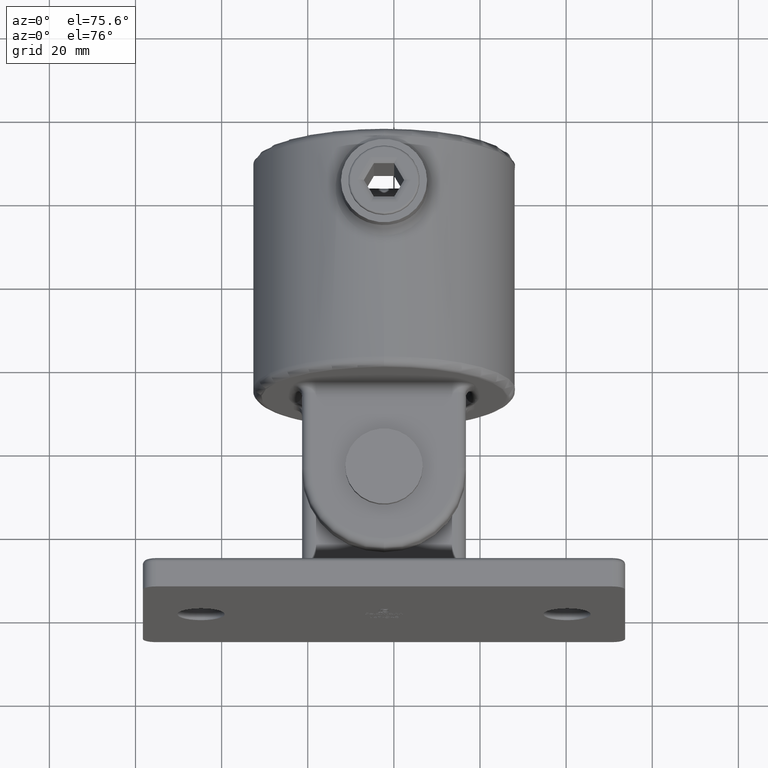
[diagram: clean part render]
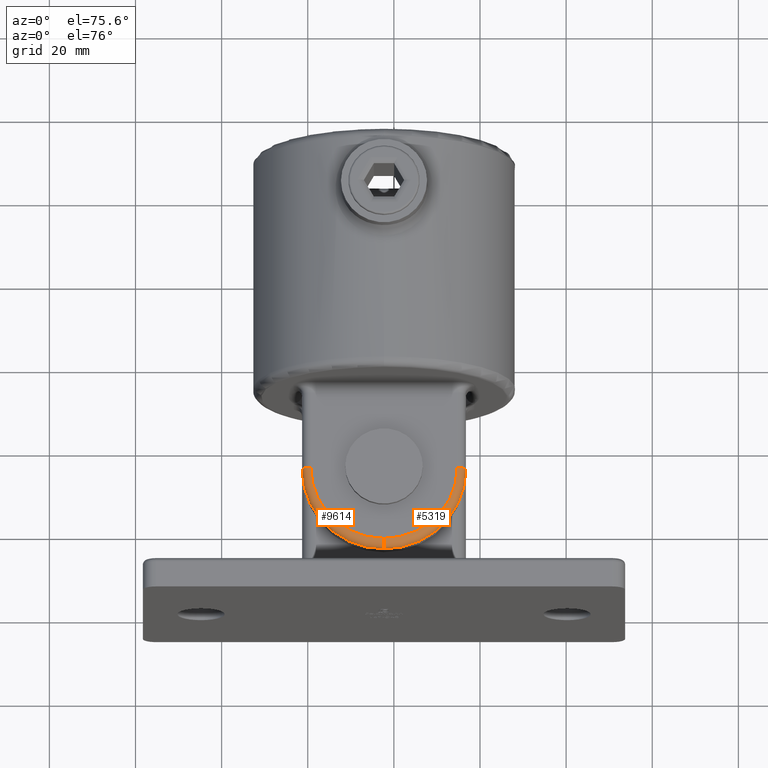
[diagram: same view with one multi-face feature highlighted, each face labeled with its STEP entity id]
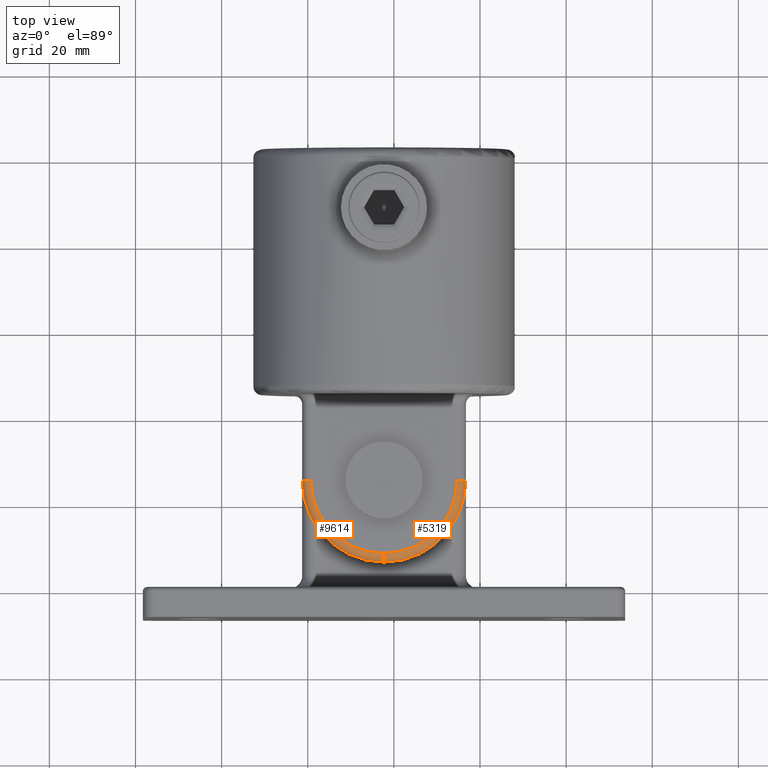
[diagram: same view with one multi-face feature highlighted, each face labeled with its STEP entity id]
A machine part, auxiliary view. The highlighted faces form ONE feature: a constant-radius fillet chain: 2 tangent blend faces with common blend radius 2 mm. The faces share edges in the B-rep.
A second angle (top view) of the same feature is appended — it is thin or edge-on in the first view.
Their STEP definitions:
[1] entity #5319 (Torus):
#174 = DIRECTION ( 'NONE',  ( -1.000000000000000000, 0.000000000000000000, 0.000000000000000000 ) ) ;
#454 = ORIENTED_EDGE ( 'NONE', *, *, #2993, .T. ) ;
#649 = CARTESIAN_POINT ( 'NONE',  ( -19.00000000000000000, 77.00000000000000000, 10.50000000000000000 ) ) ;
#1145 = VERTEX_POINT ( 'NONE', #12504 ) ;
#1255 = EDGE_CURVE ( 'NONE', #12655, #16507, #16722, .T. ) ;
#1326 = DIRECTION ( 'NONE',  ( 0.000000000000000000, 0.000000000000000000, 1.000000000000000000 ) ) ;
#1678 = DIRECTION ( 'NONE',  ( -0.000000000000000000, -0.000000000000000000, 1.000000000000000000 ) ) ;
#1778 = AXIS2_PLACEMENT_3D ( 'NONE', #12804, #11781, #13222 ) ;
#2993 = EDGE_CURVE ( 'NONE', #1145, #16507, #11648, .T. ) ;
#3105 = VERTEX_POINT ( 'NONE', #16456 ) ;
#3224 = DIRECTION ( 'NONE',  ( -1.000000000000000000, 0.000000000000000000, 0.000000000000000000 ) ) ;
#3238 = TOROIDAL_SURFACE ( 'NONE', #6994, 17.00000000000000000, 2.000000000000000000 ) ;
#4372 = AXIS2_PLACEMENT_3D ( 'NONE', #5395, #14704, #1326 ) ;
#4458 = DIRECTION ( 'NONE',  ( 0.000000000000000000, 0.000000000000000000, -1.000000000000000000 ) ) ;
#4587 = EDGE_CURVE ( 'NONE', #1145, #3105, #5623, .T. ) ;
#5161 = EDGE_CURVE ( 'NONE', #3105, #12655, #13936, .T. ) ;
#5319 = ADVANCED_FACE ( 'NONE', ( #12456 ), #3238, .T. ) ;
#5395 = CARTESIAN_POINT ( 'NONE',  ( 0.000000000000000000, 94.00000000000000000, 10.50000000000000000 ) ) ;
#5623 = CIRCLE ( 'NONE', #11112, 17.00000000000000000 ) ;
#5661 = AXIS2_PLACEMENT_3D ( 'NONE', #6549, #13022, #14346 ) ;
#6549 = CARTESIAN_POINT ( 'NONE',  ( 0.000000000000000000, 77.00000000000000000, 10.50000000000000000 ) ) ;
#6994 = AXIS2_PLACEMENT_3D ( 'NONE', #13629, #4458, #174 ) ;
#8779 = CARTESIAN_POINT ( 'NONE',  ( 0.000000000000000000, 96.00000000000000000, 10.50000000000000000 ) ) ;
#9874 = EDGE_LOOP ( 'NONE', ( #454, #12138, #13913, #15720 ) ) ;
#11112 = AXIS2_PLACEMENT_3D ( 'NONE', #12420, #1678, #3224 ) ;
#11648 = CIRCLE ( 'NONE', #4372, 2.000000000000000000 ) ;
#11781 = DIRECTION ( 'NONE',  ( 0.000000000000000000, -1.000000000000000000, 0.000000000000000000 ) ) ;
#12138 = ORIENTED_EDGE ( 'NONE', *, *, #1255, .F. ) ;
#12420 = CARTESIAN_POINT ( 'NONE',  ( 0.000000000000000000, 77.00000000000000000, 12.50000000000000000 ) ) ;
#12456 = FACE_OUTER_BOUND ( 'NONE', #9874, .T. ) ;
#12504 = CARTESIAN_POINT ( 'NONE',  ( 0.000000000000000000, 94.00000000000000000, 12.50000000000000000 ) ) ;
#12655 = VERTEX_POINT ( 'NONE', #649 ) ;
#12804 = CARTESIAN_POINT ( 'NONE',  ( -17.00000000000000000, 77.00000000000000000, 10.50000000000000000 ) ) ;
#13022 = DIRECTION ( 'NONE',  ( 0.000000000000000000, 0.000000000000000000, -1.000000000000000000 ) ) ;
#13222 = DIRECTION ( 'NONE',  ( 0.000000000000000000, 0.000000000000000000, -1.000000000000000000 ) ) ;
#13629 = CARTESIAN_POINT ( 'NONE',  ( 0.000000000000000000, 77.00000000000000000, 10.50000000000000000 ) ) ;
#13913 = ORIENTED_EDGE ( 'NONE', *, *, #5161, .F. ) ;
#13936 = CIRCLE ( 'NONE', #1778, 2.000000000000000000 ) ;
#14346 = DIRECTION ( 'NONE',  ( -1.000000000000000000, 0.000000000000000000, 0.000000000000000000 ) ) ;
#14704 = DIRECTION ( 'NONE',  ( -1.000000000000000000, 0.000000000000000000, 0.000000000000000000 ) ) ;
#15720 = ORIENTED_EDGE ( 'NONE', *, *, #4587, .F. ) ;
#16456 = CARTESIAN_POINT ( 'NONE',  ( -17.00000000000000000, 77.00000000000000000, 12.50000000000000000 ) ) ;
#16507 = VERTEX_POINT ( 'NONE', #8779 ) ;
#16722 = CIRCLE ( 'NONE', #5661, 19.00000000000000000 ) ;
[2] entity #9614 (Torus):
#228 = CARTESIAN_POINT ( 'NONE',  ( 19.00000000000000000, 77.00000000000000000, 10.50000000000000000 ) ) ;
#244 = EDGE_LOOP ( 'NONE', ( #1744, #16040, #6044, #9470 ) ) ;
#357 = AXIS2_PLACEMENT_3D ( 'NONE', #7650, #8976, #6181 ) ;
#1094 = CARTESIAN_POINT ( 'NONE',  ( 17.00000000000000000, 77.00000000000000000, 10.50000000000000000 ) ) ;
#1143 = AXIS2_PLACEMENT_3D ( 'NONE', #14025, #14071, #11485 ) ;
#1145 = VERTEX_POINT ( 'NONE', #12504 ) ;
#1326 = DIRECTION ( 'NONE',  ( 0.000000000000000000, 0.000000000000000000, 1.000000000000000000 ) ) ;
#1744 = ORIENTED_EDGE ( 'NONE', *, *, #5640, .T. ) ;
#2481 = DIRECTION ( 'NONE',  ( 0.000000000000000000, 1.000000000000000000, 0.000000000000000000 ) ) ;
#2751 = DIRECTION ( 'NONE',  ( 0.000000000000000000, 0.000000000000000000, -1.000000000000000000 ) ) ;
#2993 = EDGE_CURVE ( 'NONE', #1145, #16507, #11648, .T. ) ;
#3259 = EDGE_CURVE ( 'NONE', #16507, #14288, #10401, .T. ) ;
#3535 = AXIS2_PLACEMENT_3D ( 'NONE', #1094, #2481, #10570 ) ;
#4139 = EDGE_CURVE ( 'NONE', #4877, #1145, #9373, .T. ) ;
#4372 = AXIS2_PLACEMENT_3D ( 'NONE', #5395, #14704, #1326 ) ;
#4711 = FACE_OUTER_BOUND ( 'NONE', #244, .T. ) ;
#4877 = VERTEX_POINT ( 'NONE', #17320 ) ;
#5395 = CARTESIAN_POINT ( 'NONE',  ( 0.000000000000000000, 94.00000000000000000, 10.50000000000000000 ) ) ;
#5640 = EDGE_CURVE ( 'NONE', #4877, #14288, #9753, .T. ) ;
#6044 = ORIENTED_EDGE ( 'NONE', *, *, #2993, .F. ) ;
#6181 = DIRECTION ( 'NONE',  ( -1.000000000000000000, 0.000000000000000000, 0.000000000000000000 ) ) ;
#7650 = CARTESIAN_POINT ( 'NONE',  ( 0.000000000000000000, 77.00000000000000000, 12.50000000000000000 ) ) ;
#8779 = CARTESIAN_POINT ( 'NONE',  ( 0.000000000000000000, 96.00000000000000000, 10.50000000000000000 ) ) ;
#8868 = TOROIDAL_SURFACE ( 'NONE', #1143, 17.00000000000000000, 2.000000000000000000 ) ;
#8976 = DIRECTION ( 'NONE',  ( -0.000000000000000000, -0.000000000000000000, 1.000000000000000000 ) ) ;
#9373 = CIRCLE ( 'NONE', #357, 17.00000000000000000 ) ;
#9470 = ORIENTED_EDGE ( 'NONE', *, *, #4139, .F. ) ;
#9614 = ADVANCED_FACE ( 'NONE', ( #4711 ), #8868, .T. ) ;
#9753 = CIRCLE ( 'NONE', #3535, 2.000000000000000000 ) ;
#10401 = CIRCLE ( 'NONE', #13316, 19.00000000000000000 ) ;
#10570 = DIRECTION ( 'NONE',  ( 0.000000000000000000, 0.000000000000000000, 1.000000000000000000 ) ) ;
#11485 = DIRECTION ( 'NONE',  ( -1.000000000000000000, 0.000000000000000000, 0.000000000000000000 ) ) ;
#11648 = CIRCLE ( 'NONE', #4372, 2.000000000000000000 ) ;
#11988 = CARTESIAN_POINT ( 'NONE',  ( 0.000000000000000000, 77.00000000000000000, 10.50000000000000000 ) ) ;
#12504 = CARTESIAN_POINT ( 'NONE',  ( 0.000000000000000000, 94.00000000000000000, 12.50000000000000000 ) ) ;
#13316 = AXIS2_PLACEMENT_3D ( 'NONE', #11988, #2751, #15895 ) ;
#14025 = CARTESIAN_POINT ( 'NONE',  ( 0.000000000000000000, 77.00000000000000000, 10.50000000000000000 ) ) ;
#14071 = DIRECTION ( 'NONE',  ( 0.000000000000000000, 0.000000000000000000, -1.000000000000000000 ) ) ;
#14288 = VERTEX_POINT ( 'NONE', #228 ) ;
#14704 = DIRECTION ( 'NONE',  ( -1.000000000000000000, 0.000000000000000000, 0.000000000000000000 ) ) ;
#15895 = DIRECTION ( 'NONE',  ( -1.000000000000000000, 0.000000000000000000, 0.000000000000000000 ) ) ;
#16040 = ORIENTED_EDGE ( 'NONE', *, *, #3259, .F. ) ;
#16507 = VERTEX_POINT ( 'NONE', #8779 ) ;
#17320 = CARTESIAN_POINT ( 'NONE',  ( 17.00000000000000000, 77.00000000000000000, 12.50000000000000000 ) ) ;